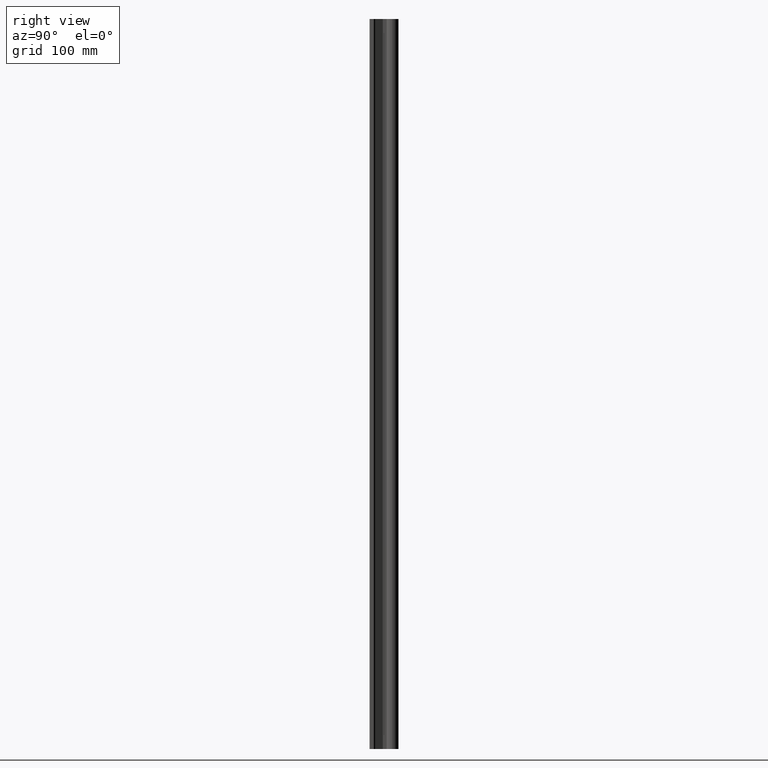
[diagram: clean part render]
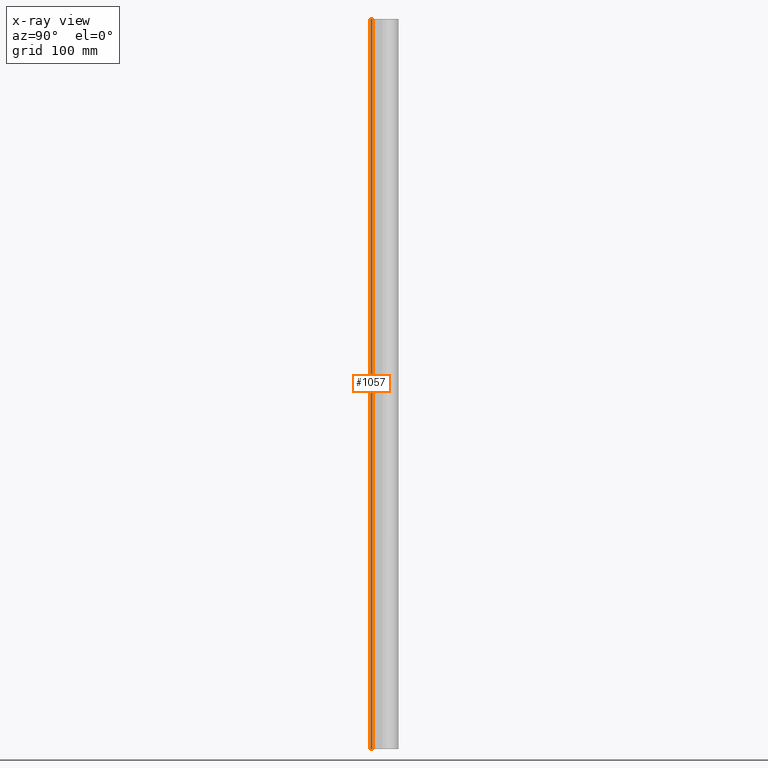
[diagram: x-ray — body ghosted, one internal face saturated and labeled with its STEP entity id]
A machine part, right view, then the same camera in x-ray: the body is ghosted and one INTERNAL B-rep face — a face not visible from any outside direction — is saturated and labeled: STEP entity #1057.
In plain terms, the highlighted planar face has unit normal (-1, 0, 0).
Its self-contained STEP definition (entity closure, byte-faithful):
#1001 = VERTEX_POINT ( 'NONE', #6019 ) ;
#1020 = CARTESIAN_POINT ( 'NONE',  ( 0.1549999999999988887, 0.06000000000000043493, -36.00000000000000000 ) ) ;
#1057 = ADVANCED_FACE ( 'NONE', ( #5217 ), #10852, .T. ) ;
#1261 = DIRECTION ( 'NONE',  ( -7.588466649067365091E-15, -1.000000000000000000, 0.000000000000000000 ) ) ;
#1367 = CARTESIAN_POINT ( 'NONE',  ( 0.1549999999999996658, 0.1590000000000008629, -37.83356500330708627 ) ) ;
#1424 = VECTOR ( 'NONE', #1261, 39.37007874015748143 ) ;
#1979 = ORIENTED_EDGE ( 'NONE', *, *, #7431, .F. ) ;
#2477 = DIRECTION ( 'NONE',  ( -1.000000000000000000, 7.588466649067366669E-15, 0.000000000000000000 ) ) ;
#2666 = LINE ( 'NONE', #10983, #11869 ) ;
#2795 = EDGE_CURVE ( 'NONE', #10505, #1001, #3999, .T. ) ;
#3031 = VECTOR ( 'NONE', #4099, 39.37007874015748143 ) ;
#3333 = CARTESIAN_POINT ( 'NONE',  ( 0.1549999999999996381, 0.1590000000000008629, 0.000000000000000000 ) ) ;
#3914 = CARTESIAN_POINT ( 'NONE',  ( 0.1549999999999988887, 0.06000000000000042105, -37.83356500330708627 ) ) ;
#3999 = LINE ( 'NONE', #3333, #1424 ) ;
#4099 = DIRECTION ( 'NONE',  ( 0.000000000000000000, 0.000000000000000000, 1.000000000000000000 ) ) ;
#4295 = CARTESIAN_POINT ( 'NONE',  ( 0.1549999999999996381, 0.1590000000000008629, -37.83356500330708627 ) ) ;
#4492 = DIRECTION ( 'NONE',  ( 7.588466649067366669E-15, 1.000000000000000000, -0.000000000000000000 ) ) ;
#4725 = EDGE_CURVE ( 'NONE', #12068, #1001, #8529, .T. ) ;
#4840 = LINE ( 'NONE', #1367, #3031 ) ;
#5217 = FACE_OUTER_BOUND ( 'NONE', #7643, .T. ) ;
#5940 = EDGE_CURVE ( 'NONE', #12068, #7314, #2666, .T. ) ;
#6019 = CARTESIAN_POINT ( 'NONE',  ( 0.1549999999999988887, 0.06000000000000042105, 0.000000000000000000 ) ) ;
#6862 = VECTOR ( 'NONE', #11387, 39.37007874015748143 ) ;
#7159 = CARTESIAN_POINT ( 'NONE',  ( 0.1549999999999996658, 0.1590000000000008629, 0.000000000000000000 ) ) ;
#7314 = VERTEX_POINT ( 'NONE', #9464 ) ;
#7431 = EDGE_CURVE ( 'NONE', #7314, #10505, #4840, .T. ) ;
#7643 = EDGE_LOOP ( 'NONE', ( #8110, #9594, #10720, #1979 ) ) ;
#8110 = ORIENTED_EDGE ( 'NONE', *, *, #5940, .F. ) ;
#8529 = LINE ( 'NONE', #3914, #6862 ) ;
#9464 = CARTESIAN_POINT ( 'NONE',  ( 0.1549999999999996658, 0.1590000000000008629, -36.00000000000000000 ) ) ;
#9594 = ORIENTED_EDGE ( 'NONE', *, *, #4725, .T. ) ;
#9937 = DIRECTION ( 'NONE',  ( -7.588466649067366669E-15, -1.000000000000000000, 0.000000000000000000 ) ) ;
#10505 = VERTEX_POINT ( 'NONE', #7159 ) ;
#10696 = AXIS2_PLACEMENT_3D ( 'NONE', #4295, #2477, #9937 ) ;
#10720 = ORIENTED_EDGE ( 'NONE', *, *, #2795, .F. ) ;
#10852 = PLANE ( 'NONE',  #10696 ) ;
#10983 = CARTESIAN_POINT ( 'NONE',  ( 0.1549999999999996381, 0.1590000000000008629, -36.00000000000000000 ) ) ;
#11387 = DIRECTION ( 'NONE',  ( 0.000000000000000000, 0.000000000000000000, 1.000000000000000000 ) ) ;
#11869 = VECTOR ( 'NONE', #4492, 39.37007874015748143 ) ;
#12068 = VERTEX_POINT ( 'NONE', #1020 ) ;